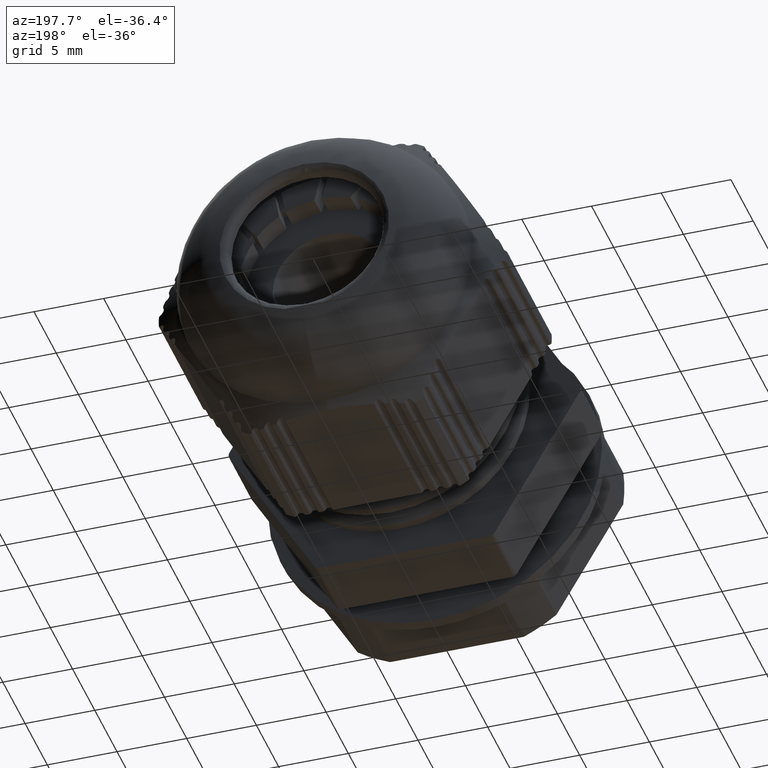
[diagram: clean part render]
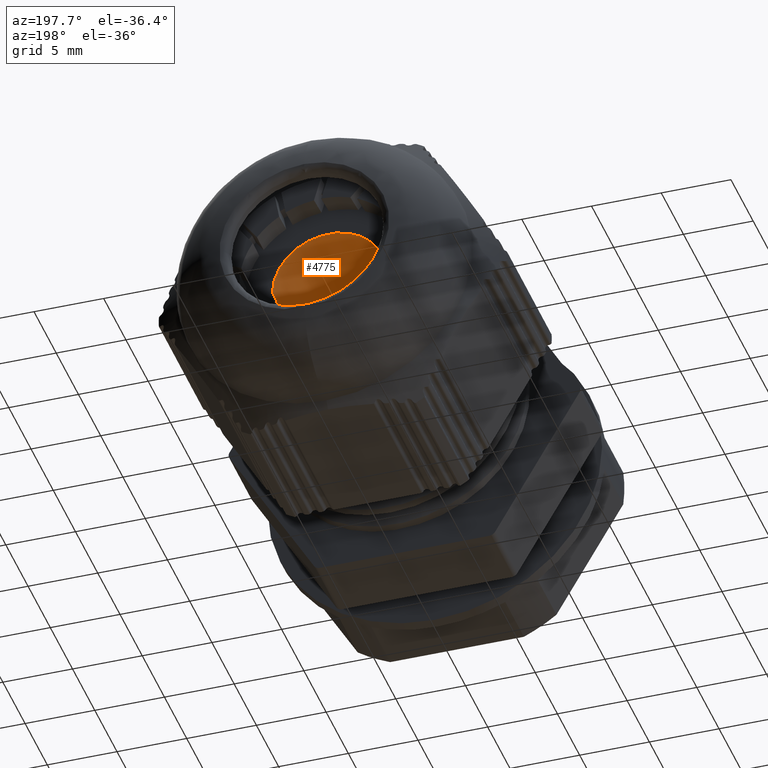
[diagram: same view with one face highlighted and labeled with its STEP entity id]
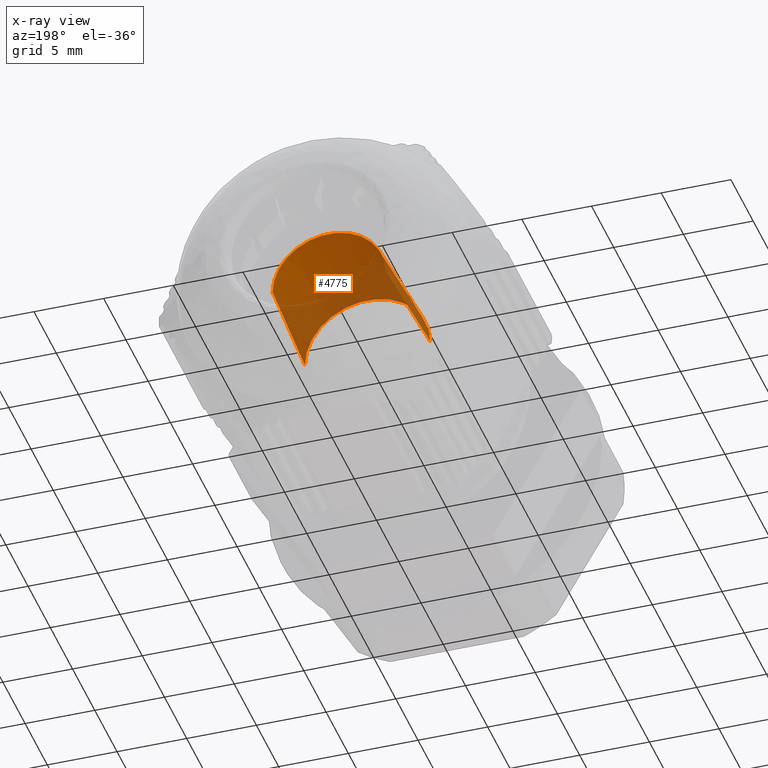
[diagram: x-ray of the same camera — body ghosted, the highlighted face saturated]
A machine part, auxiliary view. The second image highlights one B-rep face of the part: STEP entity #4775.
The next image is the same camera in x-ray: the body ghosted, the highlighted face saturated — about 45% of this face is hidden behind the body in this view.
In plain terms, the highlighted conical surface has half-angle 3 deg.
Its self-contained STEP definition (entity closure, byte-faithful):
#310 = AXIS2_PLACEMENT_3D ( 'NONE', #6639, #6627, #6640 ) ;
#326 = CIRCLE ( 'NONE', #310, 4.044052320233914700 ) ;
#490 = VECTOR ( 'NONE', #8061, 1000.000000000000100 ) ;
#600 = VECTOR ( 'NONE', #8644, 1000.000000000000100 ) ;
#818 = AXIS2_PLACEMENT_3D ( 'NONE', #9933, #9942, #9949 ) ;
#824 = CIRCLE ( 'NONE', #818, 4.499999999995470300 ) ;
#2828 = CARTESIAN_POINT ( 'NONE',  ( -4.044052320233914700, 15.69999999998117300, 5.231723162858216400E-016 ) ) ;
#2844 = CARTESIAN_POINT ( 'NONE',  ( -4.499999999995470300, 7.000000000005002200, 5.510910596157541900E-016 ) ) ;
#2853 = CARTESIAN_POINT ( 'NONE',  ( 4.499999999995470300, 7.000000000005002200, 0.0000000000000000000 ) ) ;
#3212 = CONICAL_SURFACE ( 'NONE', #3213, 4.499999999989512400, 0.05235987755986951800 ) ;
#3213 = AXIS2_PLACEMENT_3D ( 'NONE', #13890, #13881, #13862 ) ;
#4775 = ADVANCED_FACE ( 'NONE', ( #13851 ), #3212, .F. ) ;
#6627 = DIRECTION ( 'NONE',  ( -9.637352644338055600E-017, -1.000000000000000000, 0.0000000000000000000 ) ) ;
#6639 = CARTESIAN_POINT ( 'NONE',  ( 8.384496800441579700E-016, 15.69999999998117300, 0.0000000000000000000 ) ) ;
#6640 = DIRECTION ( 'NONE',  ( 1.000000000000000000, 0.0000000000000000000, 0.0000000000000000000 ) ) ;
#8059 = CARTESIAN_POINT ( 'NONE',  ( -4.499999999989512400, 7.000000000118689100, 5.510910596150245900E-016 ) ) ;
#8061 = DIRECTION ( 'NONE',  ( -0.05233595624298351800, -0.9986295347545717200, 6.409306129328557400E-018 ) ) ;
#8075 = LINE ( 'NONE', #8059, #490 ) ;
#8638 = LINE ( 'NONE', #8642, #600 ) ;
#8642 = CARTESIAN_POINT ( 'NONE',  ( 4.499999999989512400, 7.000000000118689100, 0.0000000000000000000 ) ) ;
#8644 = DIRECTION ( 'NONE',  ( 0.05233595624298331700, -0.9986295347545717200, 0.0000000000000000000 ) ) ;
#9308 = EDGE_LOOP ( 'NONE', ( #13549, #13625, #13707, #13629 ) ) ;
#9933 = CARTESIAN_POINT ( 'NONE',  ( -1.095640146142847600E-026, 7.000000000005002200, 0.0000000000000000000 ) ) ;
#9942 = DIRECTION ( 'NONE',  ( 9.637352644338055600E-017, 1.000000000000000000, -0.0000000000000000000 ) ) ;
#9949 = DIRECTION ( 'NONE',  ( 1.000000000000000000, -1.927470528865059200E-016, 0.0000000000000000000 ) ) ;
#10734 = EDGE_CURVE ( 'NONE', #11634, #11722, #326, .T. ) ;
#10884 = CARTESIAN_POINT ( 'NONE',  ( 4.044052320233915600, 15.69999999998117300, 0.0000000000000000000 ) ) ;
#11005 = EDGE_CURVE ( 'NONE', #11722, #11745, #8075, .T. ) ;
#11096 = EDGE_CURVE ( 'NONE', #11634, #11739, #8638, .T. ) ;
#11261 = EDGE_CURVE ( 'NONE', #11745, #11739, #824, .T. ) ;
#11634 = VERTEX_POINT ( 'NONE', #10884 ) ;
#11722 = VERTEX_POINT ( 'NONE', #2828 ) ;
#11739 = VERTEX_POINT ( 'NONE', #2853 ) ;
#11745 = VERTEX_POINT ( 'NONE', #2844 ) ;
#13549 = ORIENTED_EDGE ( 'NONE', *, *, #11005, .F. ) ;
#13625 = ORIENTED_EDGE ( 'NONE', *, *, #10734, .F. ) ;
#13629 = ORIENTED_EDGE ( 'NONE', *, *, #11261, .F. ) ;
#13707 = ORIENTED_EDGE ( 'NONE', *, *, #11096, .T. ) ;
#13851 = FACE_OUTER_BOUND ( 'NONE', #9308, .T. ) ;
#13862 = DIRECTION ( 'NONE',  ( 1.000000000000000000, 0.0000000000000000000, 0.0000000000000000000 ) ) ;
#13881 = DIRECTION ( 'NONE',  ( -9.637352644338055600E-017, -1.000000000000000000, 0.0000000000000000000 ) ) ;
#13890 = CARTESIAN_POINT ( 'NONE',  ( 0.0000000000000000000, 7.000000000118689100, 0.0000000000000000000 ) ) ;